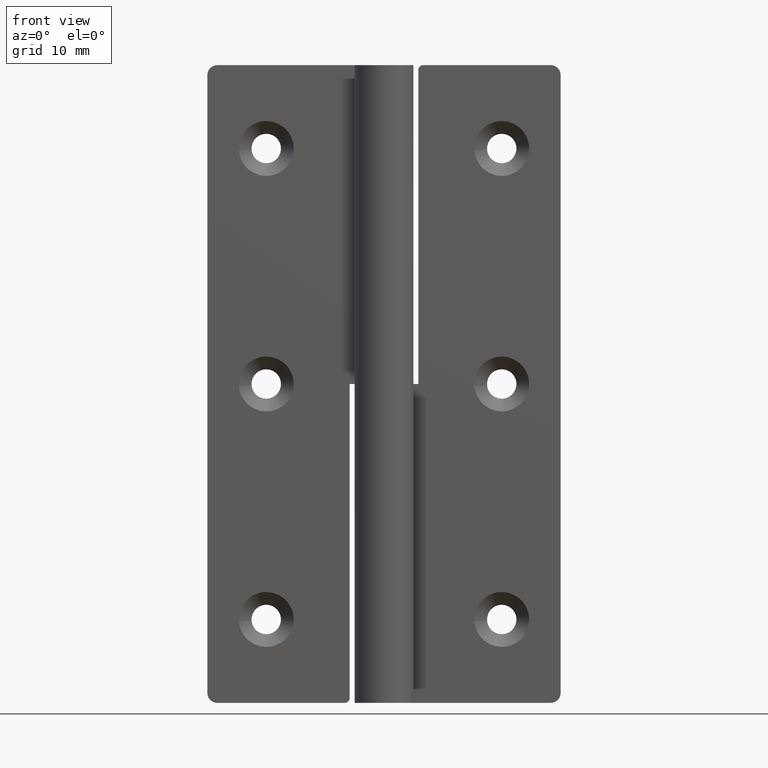
[diagram: clean part render]
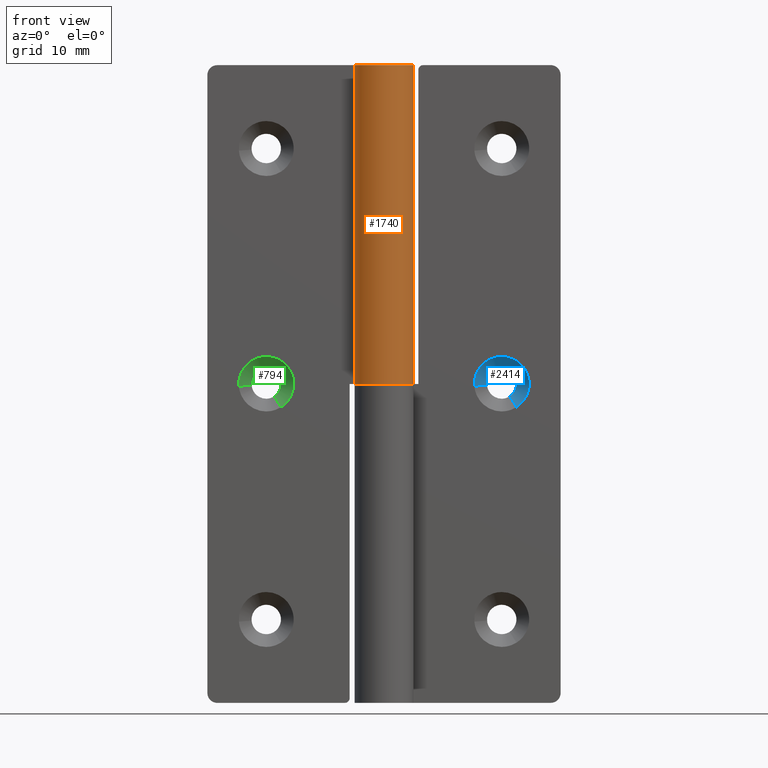
[diagram: same view with three faces highlighted in distinct colors, each labeled with its STEP entity id]
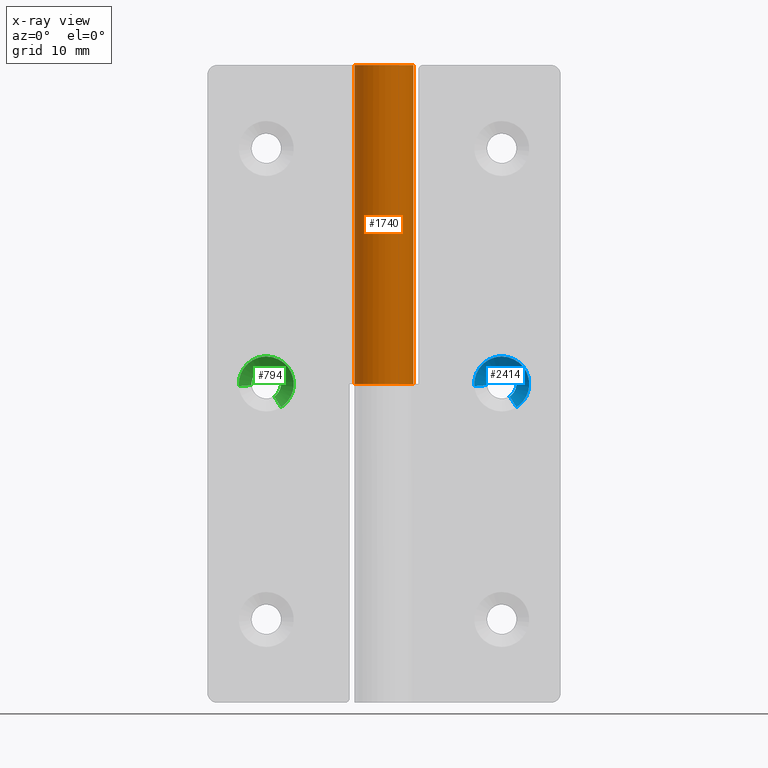
[diagram: x-ray of the same camera — body ghosted, the three highlighted faces saturated]
A machine part, front view with three faces highlighted in distinct colors.
The next image is the same camera in x-ray (body ghosted, the three faces saturated) — at least one of them is partly hidden behind the body in this view.
Their STEP definitions:

[orange] entity #1740 — the highlighted face is a freeform B-spline surface patch.
#1412=CARTESIAN_POINT('',(-2.626308055046285,1.450000000000000,32.500000000000000));
#1413=VERTEX_POINT('',#1412);
#1414=CARTESIAN_POINT('',(0.0,3.0,32.500000000000000));
#1415=VERTEX_POINT('',#1414);
#1416=CARTESIAN_POINT('',(-2.626308055046285,1.450000000000000,32.500000000000000));
#1417=CARTESIAN_POINT('',(-3.733430495020850,-0.555272772398737,32.500000000000007));
#1418=CARTESIAN_POINT('',(-2.090650190973661,-2.151552395604617,32.500000000000000));
#1419=CARTESIAN_POINT('',(-0.447869886926473,-3.747832018810494,32.500000000000007));
#1420=CARTESIAN_POINT('',(1.524794322195783,-2.583600915660028,32.500000000000000));
#1421=CARTESIAN_POINT('',(3.497458531318039,-1.419369812509562,32.500000000000007));
#1422=CARTESIAN_POINT('',(2.894027959728419,0.790315417176415,32.500000000000000));
#1423=CARTESIAN_POINT('',(2.290597388138799,3.000000646862393,32.500000000000007));
#1424=CARTESIAN_POINT('',(0.0,3.0,32.500000000000000));
#1432=(BOUNDED_CURVE()B_SPLINE_CURVE(2,(#1416,#1417,#1418,#1419,#1420,#1421,#1422,#1423,#1424),.UNSPECIFIED.,.F.,.U.)B_SPLINE_CURVE_WITH_KNOTS((3,2,2,2,3),(0.0,0.250000000000000,0.500000000000000,0.750000000000000,1.0),.UNSPECIFIED.)CURVE()GEOMETRIC_REPRESENTATION_ITEM()RATIONAL_B_SPLINE_CURVE((1.0,0.794807548154990,1.0,0.794807548154990,1.0,0.794807548154990,1.0,0.794807548154990,1.0))REPRESENTATION_ITEM(''));
#1433=EDGE_CURVE('',#1413,#1415,#1432,.T.);
#1673=CARTESIAN_POINT('',(-2.626308055046285,1.450000000000000,65.0));
#1674=VERTEX_POINT('',#1673);
#1675=CARTESIAN_POINT('',(-2.626308055046285,1.450000000000000,32.500000000000000));
#1676=CARTESIAN_POINT('',(-2.626308055046285,1.450000000000000,65.0));
#1677=QUASI_UNIFORM_CURVE('',1,(#1675,#1676),.UNSPECIFIED.,.F.,.U.);
#1678=EDGE_CURVE('',#1413,#1674,#1677,.T.);
#1688=CARTESIAN_POINT('',(-0.026179597768584,2.999884769230590,31.687500000000000));
#1689=CARTESIAN_POINT('',(-0.026179597768584,2.999884769230590,65.832812500000017));
#1690=CARTESIAN_POINT('',(3.591479420233541,3.031455601192738,31.687500000000004));
#1691=CARTESIAN_POINT('',(3.591479420233541,3.031455601192738,65.832812500000003));
#1692=CARTESIAN_POINT('',(2.952894411097322,-0.529536209254089,31.687500000000000));
#1693=CARTESIAN_POINT('',(2.952894411097322,-0.529536209254089,65.832812500000017));
#1694=CARTESIAN_POINT('',(2.314309401961106,-4.090528019700916,31.687500000000004));
#1695=CARTESIAN_POINT('',(2.314309401961106,-4.090528019700916,65.832812500000003));
#1696=CARTESIAN_POINT('',(-1.066951929793866,-2.803855841428039,31.687500000000000));
#1697=CARTESIAN_POINT('',(-1.066951929793866,-2.803855841428039,65.832812500000017));
#1698=CARTESIAN_POINT('',(-4.448213261548839,-1.517183663155162,31.687500000000004));
#1699=CARTESIAN_POINT('',(-4.448213261548839,-1.517183663155162,65.832812500000003));
#1700=CARTESIAN_POINT('',(-2.557919640422113,1.567495171649279,31.687500000000000));
#1701=CARTESIAN_POINT('',(-2.557919640422113,1.567495171649279,65.832812500000017));
#1709=(BOUNDED_SURFACE()B_SPLINE_SURFACE(1,2,((#1688,#1690,#1692,#1694,#1696,#1698,#1700),(#1689,#1691,#1693,#1695,#1697,#1699,#1701)),.UNSPECIFIED.,.F.,.F.,.U.)B_SPLINE_SURFACE_WITH_KNOTS((2,2),(3,2,2,3),(0.0,34.145312500000017),(0.0,5.638244632744899,11.276489265489801,16.914733898234690),.UNSPECIFIED.)GEOMETRIC_REPRESENTATION_ITEM()RATIONAL_B_SPLINE_SURFACE(((1.0,0.638320090924328,1.0,0.638320090924328,1.0,0.638320090924328,1.0),(1.0,0.638320090924328,1.0,0.638320090924328,1.0,0.638320090924328,1.0)))REPRESENTATION_ITEM('')SURFACE());
#1710=ORIENTED_EDGE('',*,*,#1678,.F.);
#1711=ORIENTED_EDGE('',*,*,#1433,.T.);
#1712=CARTESIAN_POINT('',(0.0,3.0,65.0));
#1713=VERTEX_POINT('',#1712);
#1714=CARTESIAN_POINT('',(0.0,3.0,32.500000000000000));
#1715=CARTESIAN_POINT('',(0.0,3.0,65.0));
#1716=QUASI_UNIFORM_CURVE('',1,(#1714,#1715),.UNSPECIFIED.,.F.,.U.);
#1717=EDGE_CURVE('',#1415,#1713,#1716,.T.);
#1718=ORIENTED_EDGE('',*,*,#1717,.T.);
#1719=CARTESIAN_POINT('',(0.0,3.0,65.0));
#1720=CARTESIAN_POINT('',(2.290597388138794,3.000000646862389,65.0));
#1721=CARTESIAN_POINT('',(2.894027959728418,0.790315417176417,65.0));
#1722=CARTESIAN_POINT('',(3.497458531318041,-1.419369812509558,65.0));
#1723=CARTESIAN_POINT('',(1.524794322195787,-2.583600915660025,65.0));
#1724=CARTESIAN_POINT('',(-0.447869886926467,-3.747832018810492,65.0));
#1725=CARTESIAN_POINT('',(-2.090650190973657,-2.151552395604612,65.0));
#1726=CARTESIAN_POINT('',(-3.733430495020845,-0.555272772398734,65.0));
#1727=CARTESIAN_POINT('',(-2.626308055046285,1.450000000000000,65.0));
#1735=(BOUNDED_CURVE()B_SPLINE_CURVE(2,(#1719,#1720,#1721,#1722,#1723,#1724,#1725,#1726,#1727),.UNSPECIFIED.,.F.,.U.)B_SPLINE_CURVE_WITH_KNOTS((3,2,2,2,3),(0.0,0.250000000000000,0.500000000000000,0.750000000000000,1.0),.UNSPECIFIED.)CURVE()GEOMETRIC_REPRESENTATION_ITEM()RATIONAL_B_SPLINE_CURVE((1.0,0.794807548154990,1.0,0.794807548154990,1.0,0.794807548154990,1.0,0.794807548154990,1.0))REPRESENTATION_ITEM(''));
#1736=EDGE_CURVE('',#1713,#1674,#1735,.T.);
#1737=ORIENTED_EDGE('',*,*,#1736,.T.);
#1738=EDGE_LOOP('',(#1710,#1711,#1718,#1737));
#1739=FACE_OUTER_BOUND('',#1738,.T.);
#1740=ADVANCED_FACE('',(#1739),#1709,.T.);

[blue] entity #2414 — the highlighted face is a freeform B-spline surface patch.
#2278=CARTESIAN_POINT('',(12.789296039222011,2.832500012218953,31.262838728542739));
#2279=CARTESIAN_POINT('',(13.532107303791166,2.832500012218953,31.736744598812443));
#2280=CARTESIAN_POINT('',(13.462976186956260,2.832500012218953,32.615138722957226));
#2281=CARTESIAN_POINT('',(13.347837463999028,2.832500012218954,34.078114909913495));
#2282=CARTESIAN_POINT('',(11.884861277042770,2.832500012218953,33.962976186956261));
#2283=CARTESIAN_POINT('',(10.421885090086510,2.832500012218954,33.847837463999035));
#2284=CARTESIAN_POINT('',(10.537023813043740,2.832500012218953,32.384861277042774));
#2285=CARTESIAN_POINT('',(13.523899382782032,1.466687499694526,30.111404081244530));
#2286=CARTESIAN_POINT('',(14.958050286055572,1.466687499694526,31.026377459183475));
#2287=CARTESIAN_POINT('',(14.824578355321460,1.466687499694526,32.722299137623672));
#2288=CARTESIAN_POINT('',(14.602279217697788,1.466687499694527,35.546877492945121));
#2289=CARTESIAN_POINT('',(11.777700862376330,1.466687499694526,35.324578355321457));
#2290=CARTESIAN_POINT('',(8.953122507054868,1.466687499694527,35.102279217697792));
#2291=CARTESIAN_POINT('',(9.175421644678542,1.466687499694526,32.277700862376328));
#2299=(BOUNDED_SURFACE()B_SPLINE_SURFACE(2,1,((#2278,#2285),(#2279,#2286),(#2280,#2287),(#2281,#2288),(#2282,#2289),(#2283,#2290),(#2284,#2291)),.UNSPECIFIED.,.F.,.F.,.U.)B_SPLINE_SURFACE_WITH_KNOTS((3,2,2,3),(2,2),(0.0,3.192182395695130,7.886568271717382,12.580954147739630),(0.0,1.0),.UNSPECIFIED.)GEOMETRIC_REPRESENTATION_ITEM()RATIONAL_B_SPLINE_SURFACE(((0.872532871172386,0.872532871172386),(0.800832611206852,0.800832611206852),(1.0,1.0),(0.707106781186548,0.707106781186548),(1.0,1.0),(0.707106781186548,0.707106781186548),(1.0,1.0)))REPRESENTATION_ITEM('')SURFACE());
#2300=CARTESIAN_POINT('',(13.489514289519180,2.800000011920930,32.677051352206547));
#2301=VERTEX_POINT('',#2300);
#2302=CARTESIAN_POINT('',(12.806776190298001,2.800000011913454,31.235439926776639));
#2303=VERTEX_POINT('',#2302);
#2304=CARTESIAN_POINT('',(13.489514289519180,2.800000011920929,32.677051352206554));
#2305=CARTESIAN_POINT('',(13.499999999999996,2.800000011920930,32.588836179701609));
#2306=CARTESIAN_POINT('',(13.500000000000000,2.800000011920930,32.500000000000000));
#2307=CARTESIAN_POINT('',(13.500000000000005,2.800000011920930,31.677709516170253));
#2308=CARTESIAN_POINT('',(12.806776190297997,2.800000011913454,31.235439926776646));
#2316=(BOUNDED_CURVE()B_SPLINE_CURVE(2,(#2304,#2305,#2306,#2307,#2308),.UNSPECIFIED.,.F.,.U.)B_SPLINE_CURVE_WITH_KNOTS((3,2,3),(0.229562473465400,0.250000000000000,0.407950112597463),.UNSPECIFIED.)CURVE()GEOMETRIC_REPRESENTATION_ITEM()RATIONAL_B_SPLINE_CURVE((0.956026754089406,0.976055948274783,1.0,0.814949932437527,0.863729296936340))REPRESENTATION_ITEM(''));
#2317=EDGE_CURVE('',#2301,#2303,#2316,.T.);
#2318=ORIENTED_EDGE('',*,*,#2317,.T.);
#2319=CARTESIAN_POINT('',(13.505982228261910,1.499999999987747,30.139487853243470));
#2320=VERTEX_POINT('',#2319);
#2321=CARTESIAN_POINT('',(12.806776190298001,2.800000011913454,31.235439926776639));
#2322=CARTESIAN_POINT('',(13.505982228261910,1.499999999987747,30.139487853243470));
#2323=QUASI_UNIFORM_CURVE('',1,(#2321,#2322),.UNSPECIFIED.,.F.,.U.);
#2324=EDGE_CURVE('',#2303,#2320,#2323,.T.);
#2325=ORIENTED_EDGE('',*,*,#2324,.T.);
#2326=CARTESIAN_POINT('',(12.0,1.500000000000000,35.300000011920943));
#2327=VERTEX_POINT('',#2326);
#2328=CARTESIAN_POINT('',(12.0,1.500000000000000,35.300000011920943));
#2329=CARTESIAN_POINT('',(14.800000011920924,1.500000000000000,35.300000011920929));
#2330=CARTESIAN_POINT('',(14.800000011920931,1.500000000000000,32.500000000000000));
#2331=CARTESIAN_POINT('',(14.800000011920933,1.500000000000000,30.965057756923517));
#2332=CARTESIAN_POINT('',(13.505982228261917,1.499999999987747,30.139487853243477));
#2340=(BOUNDED_CURVE()B_SPLINE_CURVE(2,(#2328,#2329,#2330,#2331,#2332),.UNSPECIFIED.,.F.,.U.)B_SPLINE_CURVE_WITH_KNOTS((3,2,3),(0.0,0.250000000000000,0.407950112602438),.UNSPECIFIED.)CURVE()GEOMETRIC_REPRESENTATION_ITEM()RATIONAL_B_SPLINE_CURVE((1.0,0.707106781186548,1.0,0.814949932431699,0.863729296939413))REPRESENTATION_ITEM(''));
#2341=EDGE_CURVE('',#2327,#2320,#2340,.T.);
#2342=ORIENTED_EDGE('',*,*,#2341,.F.);
#2343=CARTESIAN_POINT('',(9.208631453642511,1.499999999947907,32.280314530623897));
#2344=VERTEX_POINT('',#2343);
#2345=CARTESIAN_POINT('',(9.208631453642511,1.499999999947907,32.280314530623897));
#2346=CARTESIAN_POINT('',(9.199999988079073,1.500000000000000,32.389987699509554));
#2347=CARTESIAN_POINT('',(9.199999988079071,1.500000000000000,32.500000000000000));
#2348=CARTESIAN_POINT('',(9.199999988079071,1.500000000000000,35.300000011920929));
#2349=CARTESIAN_POINT('',(12.0,1.500000000000000,35.300000011920943));
#2357=(BOUNDED_CURVE()B_SPLINE_CURVE(2,(#2345,#2346,#2347,#2348,#2349),.UNSPECIFIED.,.F.,.U.)B_SPLINE_CURVE_WITH_KNOTS((3,2,3),(0.736331300583791,0.750000000000000,1.0),.UNSPECIFIED.)CURVE()GEOMETRIC_REPRESENTATION_ITEM()RATIONAL_B_SPLINE_CURVE((0.969723356069607,0.983986122523972,1.0,0.707106781186548,1.0))REPRESENTATION_ITEM(''));
#2358=EDGE_CURVE('',#2344,#2327,#2357,.T.);
#2359=ORIENTED_EDGE('',*,*,#2358,.F.);
#2360=CARTESIAN_POINT('',(10.504623999345091,2.800000011783318,32.382311355355903));
#2361=VERTEX_POINT('',#2360);
#2362=CARTESIAN_POINT('',(10.504623999345091,2.800000011783318,32.382311355355903));
#2363=CARTESIAN_POINT('',(9.208631453642511,1.499999999947907,32.280314530623897));
#2364=QUASI_UNIFORM_CURVE('',1,(#2362,#2363),.UNSPECIFIED.,.F.,.U.);
#2365=EDGE_CURVE('',#2361,#2344,#2364,.T.);
#2366=ORIENTED_EDGE('',*,*,#2365,.F.);
#2367=CARTESIAN_POINT('',(10.502797802390299,2.800000011920930,32.408427190320083));
#2368=VERTEX_POINT('',#2367);
#2369=CARTESIAN_POINT('',(10.504623999345094,2.800000011783319,32.382311355355895));
#2370=CARTESIAN_POINT('',(10.503596946260680,2.800000011920929,32.395361303642858));
#2371=CARTESIAN_POINT('',(10.502797802390296,2.800000011920930,32.408427190320083));
#2379=(BOUNDED_CURVE()B_SPLINE_CURVE(2,(#2369,#2370,#2371),.UNSPECIFIED.,.F.,.U.)B_SPLINE_CURVE_WITH_KNOTS((3,3),(0.736331300393972,0.739332962154929),.UNSPECIFIED.)CURVE()GEOMETRIC_REPRESENTATION_ITEM()RATIONAL_B_SPLINE_CURVE((0.969723355673468,0.972855475218636,0.976072041486660))REPRESENTATION_ITEM(''));
#2380=EDGE_CURVE('',#2361,#2368,#2379,.T.);
#2381=ORIENTED_EDGE('',*,*,#2380,.T.);
#2382=CARTESIAN_POINT('',(12.0,2.800000011920930,34.0));
#2383=VERTEX_POINT('',#2382);
#2384=CARTESIAN_POINT('',(10.502797802390294,2.800000011920930,32.408427190320083));
#2385=CARTESIAN_POINT('',(10.500000000000000,2.800000011920930,32.454170854673428));
#2386=CARTESIAN_POINT('',(10.500000000000000,2.800000011920930,32.500000000000000));
#2387=CARTESIAN_POINT('',(10.500000000000002,2.800000011920930,34.000000000000007));
#2388=CARTESIAN_POINT('',(12.0,2.800000011920930,34.0));
#2396=(BOUNDED_CURVE()B_SPLINE_CURVE(2,(#2384,#2385,#2386,#2387,#2388),.UNSPECIFIED.,.F.,.U.)B_SPLINE_CURVE_WITH_KNOTS((3,2,3),(0.739332962154929,0.750000000000000,1.0),.UNSPECIFIED.)CURVE()GEOMETRIC_REPRESENTATION_ITEM()RATIONAL_B_SPLINE_CURVE((0.976072041486659,0.987502787801408,1.0,0.707106781186548,1.0))REPRESENTATION_ITEM(''));
#2397=EDGE_CURVE('',#2368,#2383,#2396,.T.);
#2398=ORIENTED_EDGE('',*,*,#2397,.T.);
#2399=CARTESIAN_POINT('',(12.0,2.800000011920930,34.0));
#2400=CARTESIAN_POINT('',(13.332261788528189,2.800000011920930,34.000000000000007));
#2401=CARTESIAN_POINT('',(13.489514289519189,2.800000011920930,32.677051352206547));
#2409=(BOUNDED_CURVE()B_SPLINE_CURVE(2,(#2399,#2400,#2401),.UNSPECIFIED.,.F.,.U.)B_SPLINE_CURVE_WITH_KNOTS((3,3),(0.0,0.229562473465401),.UNSPECIFIED.)CURVE()GEOMETRIC_REPRESENTATION_ITEM()RATIONAL_B_SPLINE_CURVE((1.0,0.731050832911764,0.956026754089406))REPRESENTATION_ITEM(''));
#2410=EDGE_CURVE('',#2383,#2301,#2409,.T.);
#2411=ORIENTED_EDGE('',*,*,#2410,.T.);
#2412=EDGE_LOOP('',(#2318,#2325,#2342,#2359,#2366,#2381,#2398,#2411));
#2413=FACE_OUTER_BOUND('',#2412,.T.);
#2414=ADVANCED_FACE('',(#2413),#2299,.F.);

[green] entity #794 — the highlighted face is a freeform B-spline surface patch.
#658=CARTESIAN_POINT('',(-11.210703993637848,2.832500012218953,31.262838780048064));
#659=CARTESIAN_POINT('',(-10.467892759993310,2.832500012218953,31.736744630588198));
#660=CARTESIAN_POINT('',(-10.537023873950170,2.832500012218953,32.615138718163792));
#661=CARTESIAN_POINT('',(-10.652162592113957,2.832500012218954,34.078114844213637));
#662=CARTESIAN_POINT('',(-12.115138718163790,2.832500012218953,33.962976126049838));
#663=CARTESIAN_POINT('',(-13.578114844213626,2.832500012218954,33.847837407886047));
#664=CARTESIAN_POINT('',(-13.462976126049840,2.832500012218953,32.384861281836208));
#665=CARTESIAN_POINT('',(-10.476100616396470,1.466687499694526,30.111404079956898));
#666=CARTESIAN_POINT('',(-9.041949712349814,1.466687499694526,31.026377458389078));
#667=CARTESIAN_POINT('',(-9.175421643155882,1.466687499694526,32.722299137743512));
#668=CARTESIAN_POINT('',(-9.397720780899393,1.466687499694527,35.546877494587633));
#669=CARTESIAN_POINT('',(-12.222299137743510,1.466687499694526,35.324578356844121));
#670=CARTESIAN_POINT('',(-15.046877494587624,1.466687499694527,35.102279219100609));
#671=CARTESIAN_POINT('',(-14.824578356844119,1.466687499694526,32.277700862256488));
#679=(BOUNDED_SURFACE()B_SPLINE_SURFACE(2,1,((#658,#665),(#659,#666),(#660,#667),(#661,#668),(#662,#669),(#663,#670),(#664,#671)),.UNSPECIFIED.,.F.,.F.,.U.)B_SPLINE_SURFACE_WITH_KNOTS((3,2,2,3),(2,2),(0.0,3.192182397415960,7.886568275968842,12.580954154521720),(0.0,1.0),.UNSPECIFIED.)GEOMETRIC_REPRESENTATION_ITEM()RATIONAL_B_SPLINE_SURFACE(((0.872532871172386,0.872532871172386),(0.800832611206852,0.800832611206852),(1.0,1.0),(0.707106781186548,0.707106781186548),(1.0,1.0),(0.707106781186548,0.707106781186548),(1.0,1.0)))REPRESENTATION_ITEM('')SURFACE());
#680=CARTESIAN_POINT('',(-10.510485754871800,2.800000011920930,32.677051346930007));
#681=VERTEX_POINT('',#680);
#682=CARTESIAN_POINT('',(-11.193223841760410,2.800000011913455,31.235439977025742));
#683=VERTEX_POINT('',#682);
#684=CARTESIAN_POINT('',(-10.510485754871802,2.800000011920929,32.677051346930007));
#685=CARTESIAN_POINT('',(-10.500000059604647,2.800000011920929,32.588836176171576));
#686=CARTESIAN_POINT('',(-10.500000059604650,2.800000011920930,32.500000000000000));
#687=CARTESIAN_POINT('',(-10.500000059604643,2.800000011920929,31.677709548845147));
#688=CARTESIAN_POINT('',(-11.193223841760407,2.800000011913455,31.235439977025742));
#696=(BOUNDED_CURVE()B_SPLINE_CURVE(2,(#684,#685,#686,#687,#688),.UNSPECIFIED.,.F.,.U.)B_SPLINE_CURVE_WITH_KNOTS((3,2,3),(0.229562473465401,0.250000000000000,0.407950112597463),.UNSPECIFIED.)CURVE()GEOMETRIC_REPRESENTATION_ITEM()RATIONAL_B_SPLINE_CURVE((0.956026754089407,0.976055948274784,1.0,0.814949932437528,0.863729296936340))REPRESENTATION_ITEM(''));
#697=EDGE_CURVE('',#681,#683,#696,.T.);
#698=ORIENTED_EDGE('',*,*,#697,.T.);
#699=CARTESIAN_POINT('',(-10.494017771738090,1.499999999987746,30.139487853243470));
#700=VERTEX_POINT('',#699);
#701=CARTESIAN_POINT('',(-11.193223841760410,2.800000011913455,31.235439977025742));
#702=CARTESIAN_POINT('',(-10.494017771738090,1.499999999987746,30.139487853243470));
#703=QUASI_UNIFORM_CURVE('',1,(#701,#702),.UNSPECIFIED.,.F.,.U.);
#704=EDGE_CURVE('',#683,#700,#703,.T.);
#705=ORIENTED_EDGE('',*,*,#704,.T.);
#706=CARTESIAN_POINT('',(-12.0,1.500000000000000,35.300000011920943));
#707=VERTEX_POINT('',#706);
#708=CARTESIAN_POINT('',(-12.0,1.500000000000000,35.300000011920943));
#709=CARTESIAN_POINT('',(-9.199999988079071,1.500000000000000,35.300000011920929));
#710=CARTESIAN_POINT('',(-9.199999988079071,1.500000000000000,32.500000000000000));
#711=CARTESIAN_POINT('',(-9.199999988079071,1.500000000000000,30.965057756923510));
#712=CARTESIAN_POINT('',(-10.494017771738088,1.499999999987746,30.139487853243462));
#720=(BOUNDED_CURVE()B_SPLINE_CURVE(2,(#708,#709,#710,#711,#712),.UNSPECIFIED.,.F.,.U.)B_SPLINE_CURVE_WITH_KNOTS((3,2,3),(0.0,0.250000000000000,0.407950112602438),.UNSPECIFIED.)CURVE()GEOMETRIC_REPRESENTATION_ITEM()RATIONAL_B_SPLINE_CURVE((1.0,0.707106781186548,1.0,0.814949932431699,0.863729296939413))REPRESENTATION_ITEM(''));
#721=EDGE_CURVE('',#707,#700,#720,.T.);
#722=ORIENTED_EDGE('',*,*,#721,.F.);
#723=CARTESIAN_POINT('',(-14.791368546357489,1.499999999947906,32.280314530623890));
#724=VERTEX_POINT('',#723);
#725=CARTESIAN_POINT('',(-14.791368546357491,1.499999999947906,32.280314530623890));
#726=CARTESIAN_POINT('',(-14.800000011920927,1.500000000000000,32.389987699509540));
#727=CARTESIAN_POINT('',(-14.800000011920931,1.500000000000000,32.500000000000000));
#728=CARTESIAN_POINT('',(-14.800000011920924,1.500000000000000,35.300000011920929));
#729=CARTESIAN_POINT('',(-12.0,1.500000000000000,35.300000011920943));
#737=(BOUNDED_CURVE()B_SPLINE_CURVE(2,(#725,#726,#727,#728,#729),.UNSPECIFIED.,.F.,.U.)B_SPLINE_CURVE_WITH_KNOTS((3,2,3),(0.736331300583791,0.750000000000000,1.0),.UNSPECIFIED.)CURVE()GEOMETRIC_REPRESENTATION_ITEM()RATIONAL_B_SPLINE_CURVE((0.969723356069606,0.983986122523972,1.0,0.707106781186548,1.0))REPRESENTATION_ITEM(''));
#738=EDGE_CURVE('',#724,#707,#737,.T.);
#739=ORIENTED_EDGE('',*,*,#738,.F.);
#740=CARTESIAN_POINT('',(-13.495375941234011,2.800000011783319,32.382311360032467));
#741=VERTEX_POINT('',#740);
#742=CARTESIAN_POINT('',(-13.495375941234011,2.800000011783319,32.382311360032467));
#743=CARTESIAN_POINT('',(-14.791368546357489,1.499999999947906,32.280314530623890));
#744=QUASI_UNIFORM_CURVE('',1,(#742,#743),.UNSPECIFIED.,.F.,.U.);
#745=EDGE_CURVE('',#741,#724,#744,.T.);
#746=ORIENTED_EDGE('',*,*,#745,.F.);
#747=CARTESIAN_POINT('',(-13.497202152989599,2.800000011920930,32.408427193049178));
#748=VERTEX_POINT('',#747);
#749=CARTESIAN_POINT('',(-13.495375941234006,2.800000011783320,32.382311360032467));
#750=CARTESIAN_POINT('',(-13.496402994277608,2.800000011920931,32.395361307800876));
#751=CARTESIAN_POINT('',(-13.497202152989606,2.800000011920930,32.408427193049178));
#759=(BOUNDED_CURVE()B_SPLINE_CURVE(2,(#749,#750,#751),.UNSPECIFIED.,.F.,.U.)B_SPLINE_CURVE_WITH_KNOTS((3,3),(0.736331300393980,0.739332962154929),.UNSPECIFIED.)CURVE()GEOMETRIC_REPRESENTATION_ITEM()RATIONAL_B_SPLINE_CURVE((0.969723355673486,0.972855475218645,0.976072041486659))REPRESENTATION_ITEM(''));
#760=EDGE_CURVE('',#741,#748,#759,.T.);
#761=ORIENTED_EDGE('',*,*,#760,.T.);
#762=CARTESIAN_POINT('',(-12.0,2.800000011920930,33.999999940395362));
#763=VERTEX_POINT('',#762);
#764=CARTESIAN_POINT('',(-13.497202152989599,2.800000011920930,32.408427193049178));
#765=CARTESIAN_POINT('',(-13.499999940395352,2.800000011920929,32.454170856494521));
#766=CARTESIAN_POINT('',(-13.499999940395361,2.800000011920930,32.500000000000000));
#767=CARTESIAN_POINT('',(-13.499999940395357,2.800000011920930,33.999999940395355));
#768=CARTESIAN_POINT('',(-12.0,2.800000011920930,33.999999940395362));
#776=(BOUNDED_CURVE()B_SPLINE_CURVE(2,(#764,#765,#766,#767,#768),.UNSPECIFIED.,.F.,.U.)B_SPLINE_CURVE_WITH_KNOTS((3,2,3),(0.739332962154929,0.750000000000000,1.0),.UNSPECIFIED.)CURVE()GEOMETRIC_REPRESENTATION_ITEM()RATIONAL_B_SPLINE_CURVE((0.976072041486661,0.987502787801409,1.0,0.707106781186548,1.0))REPRESENTATION_ITEM(''));
#777=EDGE_CURVE('',#748,#763,#776,.T.);
#778=ORIENTED_EDGE('',*,*,#777,.T.);
#779=CARTESIAN_POINT('',(-12.0,2.800000011920930,33.999999940395362));
#780=CARTESIAN_POINT('',(-10.667738264411131,2.800000011920930,33.999999940395355));
#781=CARTESIAN_POINT('',(-10.510485754871800,2.800000011920930,32.677051346930014));
#789=(BOUNDED_CURVE()B_SPLINE_CURVE(2,(#779,#780,#781),.UNSPECIFIED.,.F.,.U.)B_SPLINE_CURVE_WITH_KNOTS((3,3),(0.0,0.229562473465401),.UNSPECIFIED.)CURVE()GEOMETRIC_REPRESENTATION_ITEM()RATIONAL_B_SPLINE_CURVE((1.0,0.731050832911764,0.956026754089407))REPRESENTATION_ITEM(''));
#790=EDGE_CURVE('',#763,#681,#789,.T.);
#791=ORIENTED_EDGE('',*,*,#790,.T.);
#792=EDGE_LOOP('',(#698,#705,#722,#739,#746,#761,#778,#791));
#793=FACE_OUTER_BOUND('',#792,.T.);
#794=ADVANCED_FACE('',(#793),#679,.F.);